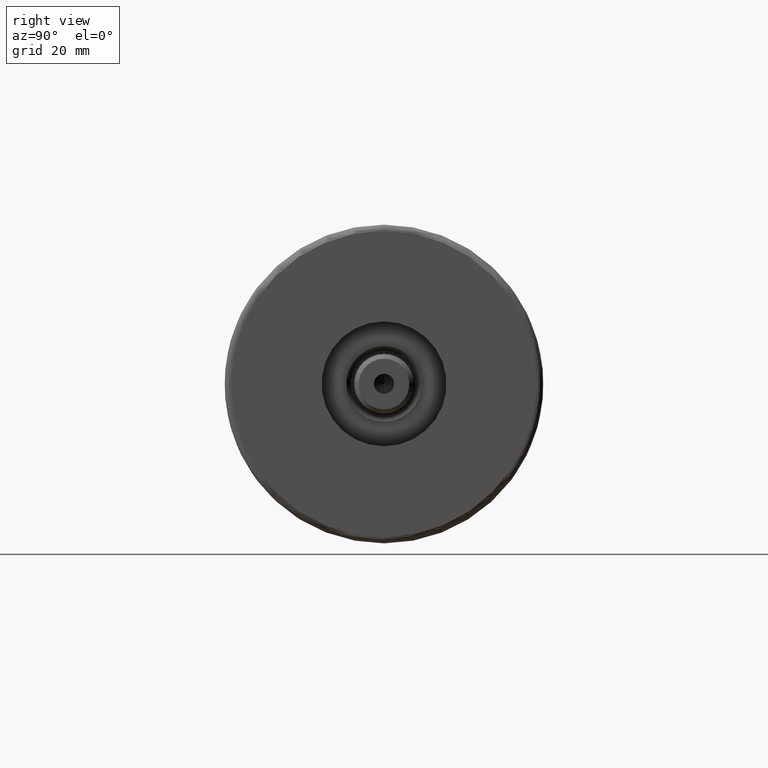
[diagram: clean part render]
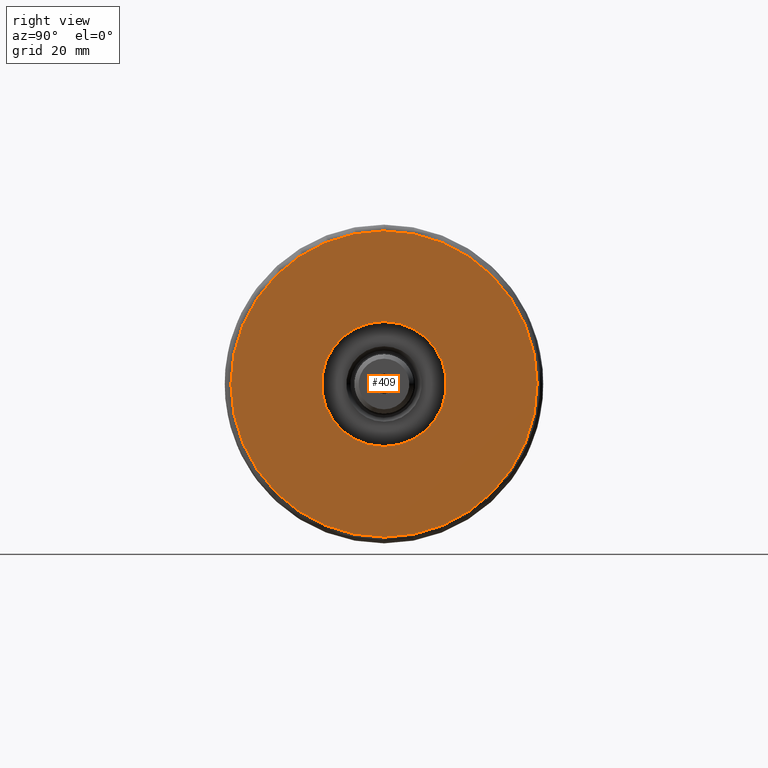
[diagram: same view with one face highlighted and labeled with its STEP entity id]
A machine part, right view. The second image highlights one B-rep face of the part: STEP entity #409.
In plain terms, the highlighted planar face has unit normal (1, 0, -0).
Its self-contained STEP definition (entity closure, byte-faithful):
#229 = CARTESIAN_POINT ( 'NONE',  ( -48.99999999999998579, 6.123233995736764507E-15, 28.00000000000000000 ) ) ;
#231 = VERTEX_POINT ( 'NONE', #3750 ) ;
#244 = AXIS2_PLACEMENT_3D ( 'NONE', #3822, #4294, #4212 ) ;
#257 = VERTEX_POINT ( 'NONE', #3675 ) ;
#409 = ADVANCED_FACE ( 'NONE', ( #4052, #4870 ), #836, .T. ) ;
#462 = CARTESIAN_POINT ( 'NONE',  ( 0.000000000000000000, 0.000000000000000000, 28.00000000000000000 ) ) ;
#577 = DIRECTION ( 'NONE',  ( 1.000000000000000000, 0.000000000000000000, 0.000000000000000000 ) ) ;
#674 = CIRCLE ( 'NONE', #2384, 20.00000000000000000 ) ;
#682 = CIRCLE ( 'NONE', #2311, 20.00000000000000000 ) ;
#724 = ORIENTED_EDGE ( 'NONE', *, *, #1580, .F. ) ;
#763 = AXIS2_PLACEMENT_3D ( 'NONE', #3658, #2863, #4002 ) ;
#836 = PLANE ( 'NONE',  #244 ) ;
#866 = CARTESIAN_POINT ( 'NONE',  ( 20.00000000000000000, 0.000000000000000000, 28.00000000000000000 ) ) ;
#886 = DIRECTION ( 'NONE',  ( 0.000000000000000000, 0.000000000000000000, 1.000000000000000000 ) ) ;
#962 = EDGE_LOOP ( 'NONE', ( #1084, #2773 ) ) ;
#1036 = AXIS2_PLACEMENT_3D ( 'NONE', #462, #4214, #577 ) ;
#1084 = ORIENTED_EDGE ( 'NONE', *, *, #2966, .T. ) ;
#1095 = VERTEX_POINT ( 'NONE', #866 ) ;
#1580 = EDGE_CURVE ( 'NONE', #257, #1095, #674, .T. ) ;
#1767 = CARTESIAN_POINT ( 'NONE',  ( 0.000000000000000000, 0.000000000000000000, 28.00000000000000000 ) ) ;
#1943 = ORIENTED_EDGE ( 'NONE', *, *, #2663, .F. ) ;
#2311 = AXIS2_PLACEMENT_3D ( 'NONE', #1767, #886, #3358 ) ;
#2384 = AXIS2_PLACEMENT_3D ( 'NONE', #2442, #2406, #4508 ) ;
#2406 = DIRECTION ( 'NONE',  ( 0.000000000000000000, 0.000000000000000000, 1.000000000000000000 ) ) ;
#2442 = CARTESIAN_POINT ( 'NONE',  ( 0.000000000000000000, 0.000000000000000000, 28.00000000000000000 ) ) ;
#2663 = EDGE_CURVE ( 'NONE', #1095, #257, #682, .T. ) ;
#2773 = ORIENTED_EDGE ( 'NONE', *, *, #4850, .T. ) ;
#2808 = VERTEX_POINT ( 'NONE', #229 ) ;
#2863 = DIRECTION ( 'NONE',  ( 0.000000000000000000, 0.000000000000000000, 1.000000000000000000 ) ) ;
#2966 = EDGE_CURVE ( 'NONE', #231, #2808, #4671, .T. ) ;
#3358 = DIRECTION ( 'NONE',  ( 1.000000000000000000, 0.000000000000000000, 0.000000000000000000 ) ) ;
#3658 = CARTESIAN_POINT ( 'NONE',  ( 0.000000000000000000, 0.000000000000000000, 28.00000000000000000 ) ) ;
#3675 = CARTESIAN_POINT ( 'NONE',  ( -20.00000000000000000, 2.449293598294706513E-15, 28.00000000000000000 ) ) ;
#3750 = CARTESIAN_POINT ( 'NONE',  ( 48.99999999999998579, 0.000000000000000000, 28.00000000000000000 ) ) ;
#3822 = CARTESIAN_POINT ( 'NONE',  ( 0.000000000000000000, 0.000000000000000000, 28.00000000000000000 ) ) ;
#3996 = EDGE_LOOP ( 'NONE', ( #1943, #724 ) ) ;
#4002 = DIRECTION ( 'NONE',  ( 1.000000000000000000, 0.000000000000000000, 0.000000000000000000 ) ) ;
#4052 = FACE_OUTER_BOUND ( 'NONE', #962, .T. ) ;
#4212 = DIRECTION ( 'NONE',  ( 1.000000000000000000, 0.000000000000000000, -0.000000000000000000 ) ) ;
#4214 = DIRECTION ( 'NONE',  ( 0.000000000000000000, 0.000000000000000000, 1.000000000000000000 ) ) ;
#4294 = DIRECTION ( 'NONE',  ( 0.000000000000000000, 0.000000000000000000, 1.000000000000000000 ) ) ;
#4508 = DIRECTION ( 'NONE',  ( 1.000000000000000000, 0.000000000000000000, 0.000000000000000000 ) ) ;
#4671 = CIRCLE ( 'NONE', #763, 48.99999999999998579 ) ;
#4850 = EDGE_CURVE ( 'NONE', #2808, #231, #5009, .T. ) ;
#4870 = FACE_BOUND ( 'NONE', #3996, .T. ) ;
#5009 = CIRCLE ( 'NONE', #1036, 48.99999999999998579 ) ;